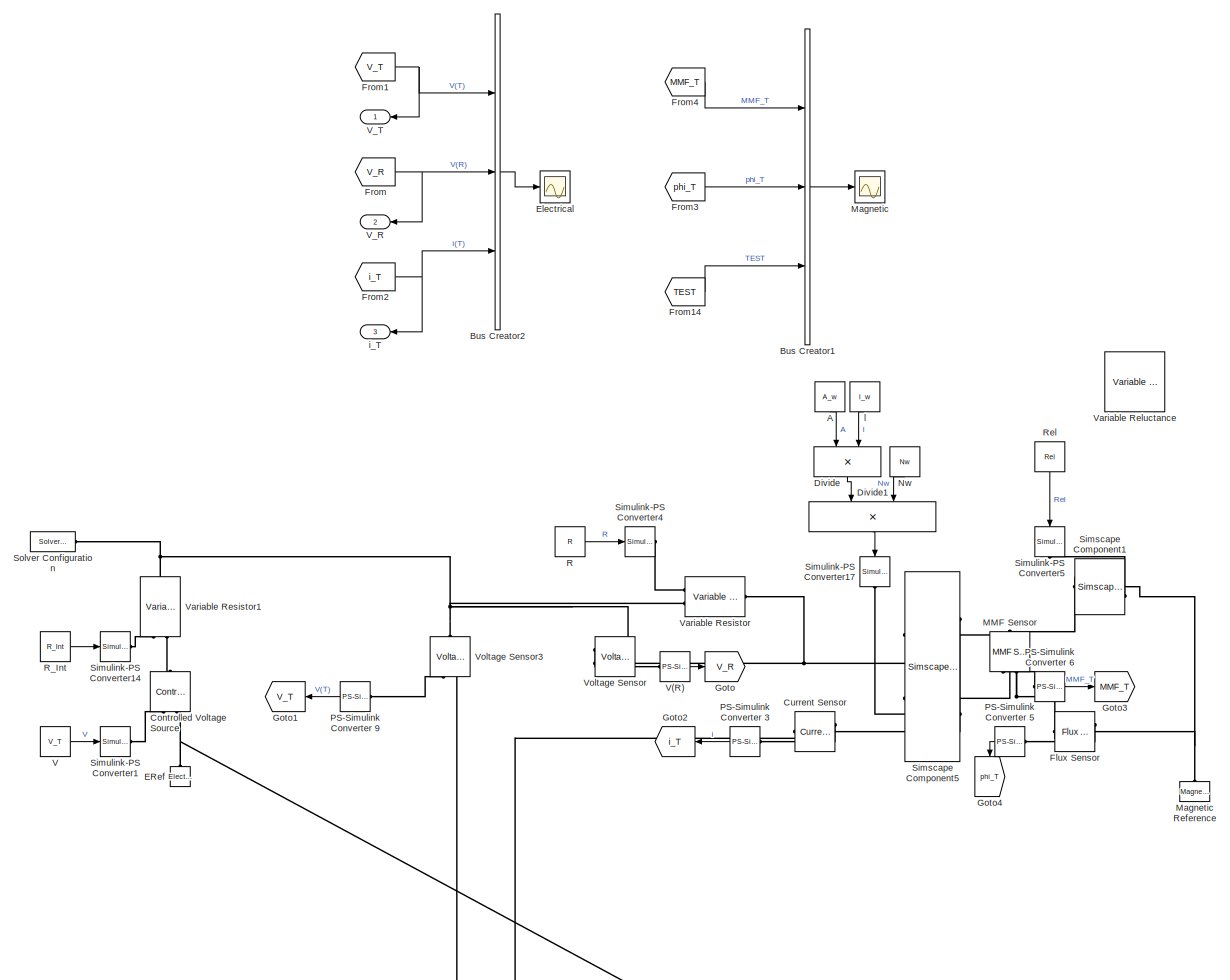
[diagram: root canvas - part 1/3, center side, full height]
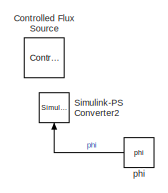
[diagram: root canvas - part 2/3, middle right region]
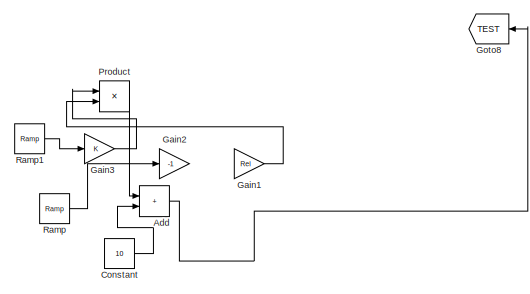
[diagram: root canvas - part 3/3, bottom left region]
MODEL slx_5c568462c823
KIND model
CONFIG AbsTol = auto
CONFIG EnableMultiTasking = off
CONFIG FixedStep = auto
CONFIG MaxStep = auto
CONFIG MinStep = auto
CONFIG RelTol = 1e-3
CONFIG SampleTimeConstraint = Unconstrained
CONFIG Solver = VariableStepAuto
CONFIG SolverName = VariableStepAuto
CONFIG StartTime = 0.0
CONFIG StopTime = 1
BLOCK [Constant] A
  NameLocation = left
  Value = A_w
BLOCK [Sum] Add
  Commented = on
  IconShape = rectangular
  Ports = [2, 1]
BLOCK [BusCreator] Bus Creator1
  DisplayOption = bar
  InheritFromInputs = on
  Inputs = 3
  Ports = [3, 1]
BLOCK [BusCreator] Bus Creator2
  DisplayOption = bar
  InheritFromInputs = on
  Inputs = 3
  Ports = [3, 1]
BLOCK [Constant] Constant
  Commented = on
  Value = 10
BLOCK [Reference] Controlled Flux Source  REF=fl_lib/Magnetic/Magnetic Sources/Controlled Flux
Source
  Commented = on
  NameLocation = right
  Ports = [0, 0, 0, 0, 0, 1, 2]
  SourceBlock = fl_lib/Magnetic/Magnetic Sources/Controlled Flux\nSource
  SourceProductBaseCode = SS
  SourceType = Controlled Flux\nSource
BLOCK [Reference] Controlled Voltage Source  REF=fl_lib/Electrical/Electrical Sources/Controlled Voltage
Source
  NameLocation = right
  Ports = [0, 0, 0, 0, 0, 1, 2]
  SourceBlock = fl_lib/Electrical/Electrical Sources/Controlled Voltage\nSource
  SourceProductBaseCode = SS
  SourceType = Controlled Voltage\nSource
BLOCK [Reference] Current Sensor  REF=fl_lib/Electrical/Electrical Sensors/Current Sensor
  Ports = [0, 0, 0, 0, 0, 1, 2]
  SourceBlock = fl_lib/Electrical/Electrical Sensors/Current Sensor
  SourceProductBaseCode = SS
  SourceType = Current Sensor
BLOCK [Product] Divide
  Inputs = */
  NameLocation = left
  Ports = [2, 1]
BLOCK [Product] Divide1
  Inputs = **
  NameLocation = left
  Ports = [2, 1]
BLOCK [Reference] ERef  REF=fl_lib/Electrical/Electrical Elements/Electrical Reference
  NameLocation = right
  Ports = [0, 0, 0, 0, 0, 1]
  SourceBlock = fl_lib/Electrical/Electrical Elements/Electrical Reference
  SourceProductBaseCode = SS
  SourceType = Electrical Reference
BLOCK [Scope] Electrical
  Floating = off
  NumInputPorts = 1
  Ports = [1]
  ScopeSpecificationString = Simulink.scopes.TimeScopeBlockCfg('CurrentConfiguration', extmgr.ConfigurationSet(extmgr.Configuration('Core','General UI',true,'FigureColor',[0.501960784313725 0.501960784313725 0.501960784313725]),extmgr.Configuration('Core','Source UI',true),extmgr.Configuration('Sources','WiredSimulink',true,'DataLoggingSaveFormat','StructureWithTime','DataLoggingDecimation','1'),extmgr.Configuration('Visuals'...<+3057ch>
  Tag = PublishScope
BLOCK [Reference] Flux Sensor  REF=fl_lib/Magnetic/Magnetic Sensors/Flux Sensor
  NameLocation = top
  Ports = [0, 0, 0, 0, 0, 1, 2]
  SourceBlock = fl_lib/Magnetic/Magnetic Sensors/Flux Sensor
  SourceProductBaseCode = SS
  SourceType = Flux Sensor
BLOCK [From] From
  GotoTag = V_R
BLOCK [From] From1
  GotoTag = V_T
BLOCK [From] From14
  GotoTag = TEST
BLOCK [From] From2
  GotoTag = i_T
BLOCK [From] From3
  GotoTag = phi_T
BLOCK [From] From4
  GotoTag = MMF_T
BLOCK [Gain] Gain1
  Commented = on
  Gain = Rel
BLOCK [Gain] Gain2
  Commented = on
  Gain = -1
BLOCK [Gain] Gain3
  Commented = on
BLOCK [Goto] Goto
  GotoTag = V_R
BLOCK [Goto] Goto1
  GotoTag = V_T
  NameLocation = top
BLOCK [Goto] Goto2
  GotoTag = i_T
  NameLocation = top
BLOCK [Goto] Goto3
  GotoTag = MMF_T
BLOCK [Goto] Goto4
  GotoTag = phi_T
  NameLocation = left
BLOCK [Goto] Goto8
  Commented = on
  GotoTag = TEST
  NameLocation = top
BLOCK [Reference] MMF Sensor  REF=fl_lib/Magnetic/Magnetic Sensors/MMF Sensor
  NameLocation = right
  Ports = [0, 0, 0, 0, 0, 1, 2]
  SourceBlock = fl_lib/Magnetic/Magnetic Sensors/MMF Sensor
  SourceProductBaseCode = SS
  SourceType = MMF Sensor
BLOCK [Scope] Magnetic
  Floating = off
  NumInputPorts = 1
  Ports = [1]
  ScopeSpecificationString = Simulink.scopes.TimeScopeBlockCfg('CurrentConfiguration', extmgr.ConfigurationSet(extmgr.Configuration('Core','General UI',true,'FigureColor',[0.501960784313725 0.501960784313725 0.501960784313725]),extmgr.Configuration('Core','Source UI',true),extmgr.Configuration('Sources','WiredSimulink',true,'DataLoggingSaveFormat','StructureWithTime','DataLoggingDecimation','1','DataLoggingVariableName','Scop...<+3067ch>
  Tag = PublishScope
BLOCK [Reference] Magnetic Reference  REF=fl_lib/Magnetic/Magnetic Elements/Magnetic Reference
  NameLocation = right
  Ports = [0, 0, 0, 0, 0, 1]
  SourceBlock = fl_lib/Magnetic/Magnetic Elements/Magnetic Reference
  SourceProductBaseCode = SS
  SourceType = Magnetic Reference
BLOCK [Constant] Nw
  NameLocation = left
  Value = Nw
BLOCK [Reference] PS-Simulink Converter 3  REF=nesl_utility/PS-Simulink
Converter
  NameLocation = top
  Ports = [0, 1, 0, 0, 0, 1]
  SourceBlock = nesl_utility/PS-Simulink\nConverter
  SourceProductBaseCode = SS
  SourceType = PS-Simulink\nConverter
BLOCK [Reference] PS-Simulink Converter 5  REF=nesl_utility/PS-Simulink
Converter
  NameLocation = top
  Ports = [0, 1, 0, 0, 0, 1]
  SourceBlock = nesl_utility/PS-Simulink\nConverter
  SourceProductBaseCode = SS
  SourceType = PS-Simulink\nConverter
BLOCK [Reference] PS-Simulink Converter 6  REF=nesl_utility/PS-Simulink
Converter
  Ports = [0, 1, 0, 0, 0, 1]
  SourceBlock = nesl_utility/PS-Simulink\nConverter
  SourceProductBaseCode = SS
  SourceType = PS-Simulink\nConverter
BLOCK [Reference] PS-Simulink Converter 9  REF=nesl_utility/PS-Simulink
Converter
  NameLocation = top
  Ports = [0, 1, 0, 0, 0, 1]
  SourceBlock = nesl_utility/PS-Simulink\nConverter
  SourceProductBaseCode = SS
  SourceType = PS-Simulink\nConverter
BLOCK [Product] Product
  Commented = on
  Ports = [2, 1]
BLOCK [Constant] R
  Value = R
BLOCK [Constant] R_Int
  Value = R_Int
BLOCK [Reference] Ramp  REF=simulink/Sources/Ramp
  Commented = on
  Ports = [0, 1]
  SourceBlock = simulink/Sources/Ramp
  SourceProductBaseCode = SL
  SourceType = Ramp
BLOCK [Reference] Ramp1  REF=simulink/Sources/Ramp
  Commented = on
  Ports = [0, 1]
  SourceBlock = simulink/Sources/Ramp
  SourceProductBaseCode = SL
  SourceType = Ramp
BLOCK [Constant] Rel
  NameLocation = left
  Value = Rel
BLOCK [SimscapeComponentBlock] Simscape Component1
  ClassName = fundamental_reluctance_mod
  ComponentPath = fundamental_reluctance_mod
  ComponentVariantNames = ["fundamental_reluctance_mod"]
  ComponentVariants = ["fundamental_reluctance_mod"]
  CopyFcn = simscape.engine.sli.internal.componentblockcallback(gcbh,'COPY')
  InternalSimscapePortConfiguration = {"Bottom":[],"Left":[{"id":"N","label":"N","type":"foundation.magnetic.magnetic"},{"id":"R","label":"Reluctance","type":"input"}],"Right":[{"id":"S","label":"S","type":"foundation.magnetic.magnetic"}],"Top":[]}
  MaskType = Fundamental Reluctance
  Ports = [0, 0, 0, 0, 0, 2, 1]
  PreCopyFcn = simscape.engine.sli.internal.componentblockcallback(gcbh,'PRECOPY')
  PreDeleteFcn = simscape.engine.sli.internal.componentblockcallback(gcbh,'PREDELETE')
  SchemaVersion = 1
  SourceFile = fundamental_reluctance_mod
  mmf = 0
  mmf_nominal_specify = off
  mmf_nominal_unit = A
  mmf_nominal_value = 1
  mmf_priority = None
  mmf_specify = off
  mmf_unit = A
  phi = 0
  phi_nominal_specify = off
  phi_nominal_unit = Wb
  phi_nominal_value = 1
  phi_priority = None
  phi_specify = off
  phi_unit = Wb
BLOCK [SimscapeComponentBlock] Simscape Component5
  ClassName = electromagenetic_converter_mod
  ComponentPath = electromagenetic_converter_mod
  ComponentVariantNames = ["electromagenetic_converter_mod"]
  ComponentVariants = ["electromagenetic_converter_mod"]
  CopyFcn = simscape.engine.sli.internal.componentblockcallback(gcbh,'COPY')
  InternalSimscapePortConfiguration = {"Bottom":[],"Left":[{"id":"p","label":"+","type":"foundation.electrical.electrical"},{"id":"n","label":"-","type":"foundation.electrical.electrical"},{"id":"Nw","label":"Number of winding turns","type":"input"}],"Right":[{"id":"N","label":"N","type":"foundation.magnetic.magnetic"},{"id":"S","label":"S","type":"foundation.magnetic.magnetic"}],"Top":[]}
  MaskType = Electromagnetic Converter
  Ports = [0, 0, 0, 0, 0, 3, 2]
  PreCopyFcn = simscape.engine.sli.internal.componentblockcallback(gcbh,'PRECOPY')
  PreDeleteFcn = simscape.engine.sli.internal.componentblockcallback(gcbh,'PREDELETE')
  SchemaVersion = 1
  SourceFile = electromagenetic_converter_mod
  i = 0
  i_nominal_specify = off
  i_nominal_unit = A
  i_nominal_value = 1
  i_priority = None
  i_specify = off
  i_unit = A
  mmf = 0
  mmf_nominal_specify = off
  mmf_nominal_unit = A
  mmf_nominal_value = 1
  mmf_priority = None
  mmf_specify = off
  mmf_unit = A
  phi = 0
  phi_nominal_specify = off
  phi_nominal_unit = Wb
  phi_nominal_value = 1
  phi_priority = High
  phi_specify = off
  phi_unit = Wb
  v = 0
  v_nominal_specify = off
  v_nominal_unit = V
  v_nominal_value = 1
  v_priority = None
  v_specify = off
  v_unit = V
BLOCK [Reference] Simulink-PS Converter1  REF=nesl_utility/Simulink-PS
Converter
  Ports = [1, 0, 0, 0, 0, 0, 1]
  SourceBlock = nesl_utility/Simulink-PS\nConverter
  SourceProductBaseCode = SS
  SourceType = Simulink-PS\nConverter
BLOCK [Reference] Simulink-PS Converter14  REF=nesl_utility/Simulink-PS
Converter
  Ports = [1, 0, 0, 0, 0, 0, 1]
  SourceBlock = nesl_utility/Simulink-PS\nConverter
  SourceProductBaseCode = SS
  SourceType = Simulink-PS\nConverter
BLOCK [Reference] Simulink-PS Converter17  REF=nesl_utility/Simulink-PS
Converter
  NameLocation = left
  Ports = [1, 0, 0, 0, 0, 0, 1]
  SourceBlock = nesl_utility/Simulink-PS\nConverter
  SourceProductBaseCode = SS
  SourceType = Simulink-PS\nConverter
BLOCK [Reference] Simulink-PS Converter2  REF=nesl_utility/Simulink-PS
Converter
  Commented = on
  NameLocation = right
  Ports = [1, 0, 0, 0, 0, 0, 1]
  SourceBlock = nesl_utility/Simulink-PS\nConverter
  SourceProductBaseCode = SS
  SourceType = Simulink-PS\nConverter
BLOCK [Reference] Simulink-PS Converter4  REF=nesl_utility/Simulink-PS
Converter
  Ports = [1, 0, 0, 0, 0, 0, 1]
  SourceBlock = nesl_utility/Simulink-PS\nConverter
  SourceProductBaseCode = SS
  SourceType = Simulink-PS\nConverter
BLOCK [Reference] Simulink-PS Converter5  REF=nesl_utility/Simulink-PS
Converter
  NameLocation = left
  Ports = [1, 0, 0, 0, 0, 0, 1]
  SourceBlock = nesl_utility/Simulink-PS\nConverter
  SourceProductBaseCode = SS
  SourceType = Simulink-PS\nConverter
BLOCK [Reference] Solver Configuration  REF=nesl_utility/Solver
Configuration
  Ports = [0, 0, 0, 0, 0, 0, 1]
  SourceBlock = nesl_utility/Solver\nConfiguration
  SourceProductBaseCode = SS
  SourceType = Solver\nConfiguration
BLOCK [Constant] V
  Value = V_T
BLOCK [Reference] V(R)  REF=nesl_utility/PS-Simulink
Converter
  Ports = [0, 1, 0, 0, 0, 1]
  SourceBlock = nesl_utility/PS-Simulink\nConverter
  SourceProductBaseCode = SS
  SourceType = PS-Simulink\nConverter
BLOCK [Outport] V_R
  NameLocation = top
  Port = 2
  SignalName = V_R
BLOCK [Outport] V_T
  NameLocation = top
  SignalName = V_T
BLOCK [Reference] Variable Reluctance  REF=fl_lib/Magnetic/Magnetic Elements/Variable Reluctance
  Commented = on
  Ports = [0, 0, 0, 0, 0, 2, 1]
  SourceBlock = fl_lib/Magnetic/Magnetic Elements/Variable Reluctance
  SourceProductBaseCode = SS
  SourceType = Variable Reluctance
BLOCK [Reference] Variable Resistor  REF=fl_lib/Electrical/Electrical Elements/Variable Resistor
  Ports = [0, 0, 0, 0, 0, 2, 1]
  SourceBlock = fl_lib/Electrical/Electrical Elements/Variable Resistor
  SourceProductBaseCode = SS
  SourceType = Variable Resistor
BLOCK [Reference] Variable Resistor1  REF=fl_lib/Electrical/Electrical Elements/Variable Resistor
  NameLocation = right
  Ports = [0, 0, 0, 0, 0, 2, 1]
  SourceBlock = fl_lib/Electrical/Electrical Elements/Variable Resistor
  SourceProductBaseCode = SS
  SourceType = Variable Resistor
BLOCK [Reference] Voltage Sensor  REF=fl_lib/Electrical/Electrical Sensors/Voltage Sensor
  Ports = [0, 0, 0, 0, 0, 1, 2]
  SourceBlock = fl_lib/Electrical/Electrical Sensors/Voltage Sensor
  SourceProductBaseCode = SS
  SourceType = Voltage Sensor
BLOCK [Reference] Voltage Sensor3  REF=fl_lib/Electrical/Electrical Sensors/Voltage Sensor
  NameLocation = left
  Ports = [0, 0, 0, 0, 0, 1, 2]
  SourceBlock = fl_lib/Electrical/Electrical Sensors/Voltage Sensor
  SourceProductBaseCode = SS
  SourceType = Voltage Sensor
BLOCK [Outport] i_T
  NameLocation = top
  Port = 3
  SignalName = i_T
BLOCK [Constant] l
  NameLocation = left
  Value = l_w
BLOCK [Constant] phi
  Commented = on
  NameLocation = top
  Value = phi
LINE A:1 -> Divide:1
LINE Add:1 -> Goto8:1
LINE Bus Creator1:1 -> Magnetic:1
LINE Bus Creator2:1 -> Electrical:1
LINE Constant:1 -> Add:2
LINE Divide1:1 -> Simulink-PS Converter17:1
LINE Divide:1 -> Divide1:1
LINE From14:1 -> Bus Creator1:3
NET From1:1 -> Bus Creator2:1, V_T:1
NET From2:1 -> Bus Creator2:3, i_T:1
LINE From3:1 -> Bus Creator1:2
LINE From4:1 -> Bus Creator1:1
NET From:1 -> Bus Creator2:2, V_R:1
LINE Gain1:1 -> Product:2
LINE Gain3:1 -> Product:1
LINE Nw:1 -> Divide1:2
LINE PS-Simulink Converter 3:1 -> Goto2:1
LINE PS-Simulink Converter 5:1 -> Goto4:1
LINE PS-Simulink Converter 6:1 -> Goto3:1
LINE PS-Simulink Converter 9:1 -> Goto1:1
LINE Product:1 -> Add:1
LINE R:1 -> Simulink-PS Converter4:1
LINE R_Int:1 -> Simulink-PS Converter14:1
LINE Ramp1:1 -> Gain3:1
LINE Ramp:1 -> Gain2:1
LINE Rel:1 -> Simulink-PS Converter5:1
LINE V(R):1 -> Goto:1
LINE V:1 -> Simulink-PS Converter1:1
LINE l:1 -> Divide:2
LINE phi:1 -> Simulink-PS Converter2:1
PLINE Controlled Voltage Source:LConn1 -- Variable Resistor1:LConn2
PLINE Controlled Voltage Source:RConn1 -- Simulink-PS Converter1:RConn1
PNET net1: Controlled Voltage Source:RConn2 -- Current Sensor:RConn2 -- ERef:LConn1 -- Voltage Sensor3:RConn2
PLINE Current Sensor:LConn1 -- Simscape Component5:LConn1
PLINE Current Sensor:RConn1 -- PS-Simulink Converter 3:LConn1
PNET net2: Flux Sensor:LConn1 -- Magnetic Reference:LConn1 -- Simscape Component1:RConn1
PLINE Flux Sensor:RConn1 -- PS-Simulink Converter 5:LConn1
PNET net3: Flux Sensor:RConn2 -- MMF Sensor:RConn2 -- Simscape Component5:RConn1
PNET net4: MMF Sensor:LConn1 -- Simscape Component1:LConn1 -- Simscape Component5:RConn2
PLINE MMF Sensor:RConn1 -- PS-Simulink Converter 6:LConn1
PLINE PS-Simulink Converter 9:LConn1 -- Voltage Sensor3:RConn1
PLINE Simscape Component1:LConn2 -- Simulink-PS Converter5:RConn1
PNET net5: Simscape Component5:LConn2 -- Variable Resistor:RConn1 -- Voltage Sensor:RConn2
PLINE Simscape Component5:LConn3 -- Simulink-PS Converter17:RConn1
PLINE Simulink-PS Converter14:RConn1 -- Variable Resistor1:LConn1
PLINE Simulink-PS Converter4:RConn1 -- Variable Resistor:LConn1
PNET net6: Solver Configuration:RConn1 -- Variable Resistor1:RConn1 -- Variable Resistor:LConn2 -- Voltage Sensor3:LConn1 -- Voltage Sensor:LConn1
PLINE V(R):LConn1 -- Voltage Sensor:RConn1
note: NET lines group one-source signal fan-out (src -> all destinations, sorted); 1:1 wires keep LINE; PNET lines group multi-terminal physical nets as a canonical sorted terminal list (undirected conserving connections); 2-terminal nets keep the pairwise PLINE form
